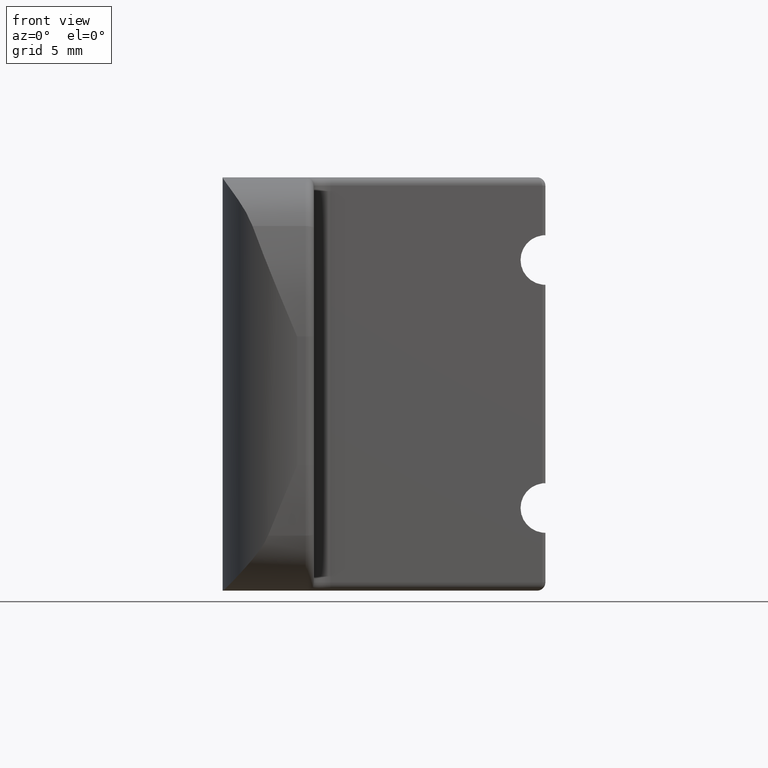
[diagram: clean part render]
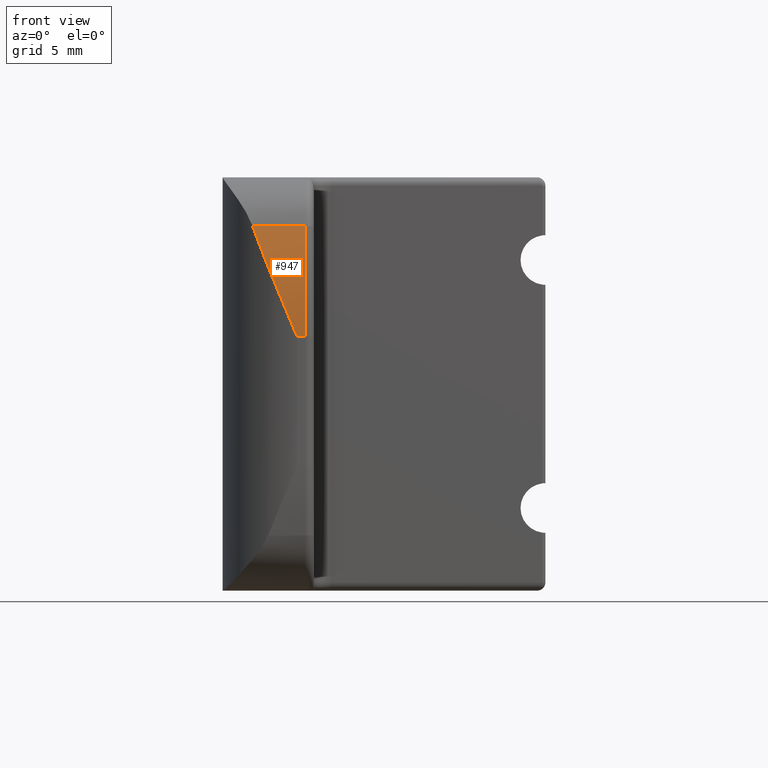
[diagram: same view with one face highlighted and labeled with its STEP entity id]
A machine part, front view. The second image highlights one B-rep face of the part: STEP entity #947.
In plain terms, the highlighted cylindrical surface (partial cylindrical patch) has radius 25.3649 mm, axis along (-1, -0, 0).
Its self-contained STEP definition (entity closure, byte-faithful):
#80=LINE('',#1678,#149);
#82=LINE('',#1682,#151);
#149=VECTOR('',#1273,10.);
#151=VECTOR('',#1277,10.);
#199=CYLINDRICAL_SURFACE('',#1064,25.3649241363035);
#243=FACE_OUTER_BOUND('',#301,.T.);
#301=EDGE_LOOP('',(#744,#745,#746,#747));
#337=B_SPLINE_CURVE_WITH_KNOTS('',3,(#1683,#1684,#1685,#1686,#1687,#1688),
 .UNSPECIFIED.,.F.,.F.,(4,2,4),(0.,0.512339648090739,0.682223332562327),
 .UNSPECIFIED.);
#376=CIRCLE('',#1044,25.3649241363035);
#429=VERTEX_POINT('',#1601);
#431=VERTEX_POINT('',#1607);
#447=VERTEX_POINT('',#1677);
#448=VERTEX_POINT('',#1681);
#532=EDGE_CURVE('',#431,#429,#376,.T.);
#561=EDGE_CURVE('',#447,#429,#80,.T.);
#563=EDGE_CURVE('',#431,#448,#82,.T.);
#564=EDGE_CURVE('',#447,#448,#337,.T.);
#744=ORIENTED_EDGE('',*,*,#532,.F.);
#745=ORIENTED_EDGE('',*,*,#563,.T.);
#746=ORIENTED_EDGE('',*,*,#564,.F.);
#747=ORIENTED_EDGE('',*,*,#561,.T.);
#947=ADVANCED_FACE('',(#243),#199,.T.);
#1044=AXIS2_PLACEMENT_3D('',#1609,#1216,#1217);
#1064=AXIS2_PLACEMENT_3D('',#1680,#1275,#1276);
#1216=DIRECTION('center_axis',(1.,3.26536183713277E-16,0.));
#1217=DIRECTION('ref_axis',(3.22803835825065E-16,-0.991135562722025,0.132854417719901));
#1273=DIRECTION('',(1.,3.5527136788005E-16,0.));
#1275=DIRECTION('center_axis',(-1.,-3.5527136788005E-16,0.));
#1276=DIRECTION('ref_axis',(-3.42730078054605E-16,0.964699407384612,-0.263353476133843));
#1277=DIRECTION('',(-1.,-3.5527136788005E-16,0.));
#1601=CARTESIAN_POINT('',(-7.90000000000004,-12.4000000000001,2.87446327187621));
#1607=CARTESIAN_POINT('',(-7.90000000000004,-11.5046031463442,9.55440421504294));
#1609=CARTESIAN_POINT('Origin',(-7.90000000000005,12.9649241363034,2.87446327187621));
#1677=CARTESIAN_POINT('',(-8.41699998732233,-12.4,2.87446327187621));
#1678=CARTESIAN_POINT('',(-7.40000000000004,-12.4000000000001,2.87446327187621));
#1680=CARTESIAN_POINT('Origin',(-7.40000000000005,12.9649241363034,2.87446327187621));
#1681=CARTESIAN_POINT('',(-11.1108515343394,-11.5046031463442,9.55440421504294));
#1682=CARTESIAN_POINT('',(-7.40000000000004,-11.5046031463442,9.55440421504294));
#1683=CARTESIAN_POINT('Ctrl Pts',(-8.41699998732233,-12.4000000000001,2.87446327187621));
#1684=CARTESIAN_POINT('Ctrl Pts',(-9.07992172467838,-12.4000000000001,4.44834751270778));
#1685=CARTESIAN_POINT('Ctrl Pts',(-9.80662410771333,-12.2450893339626,6.1685216732053));
#1686=CARTESIAN_POINT('Ctrl Pts',(-10.693687340124,-11.7895180227409,8.43581268842266));
#1687=CARTESIAN_POINT('Ctrl Pts',(-10.9078747759389,-11.6562950892367,8.998736108581));
#1688=CARTESIAN_POINT('Ctrl Pts',(-11.1108515343394,-11.5046031463442,9.55440421504294));